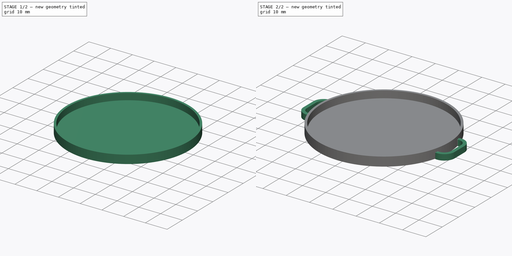
[diagram: build sequence overview — one tinted view per stage of 2, left to right]
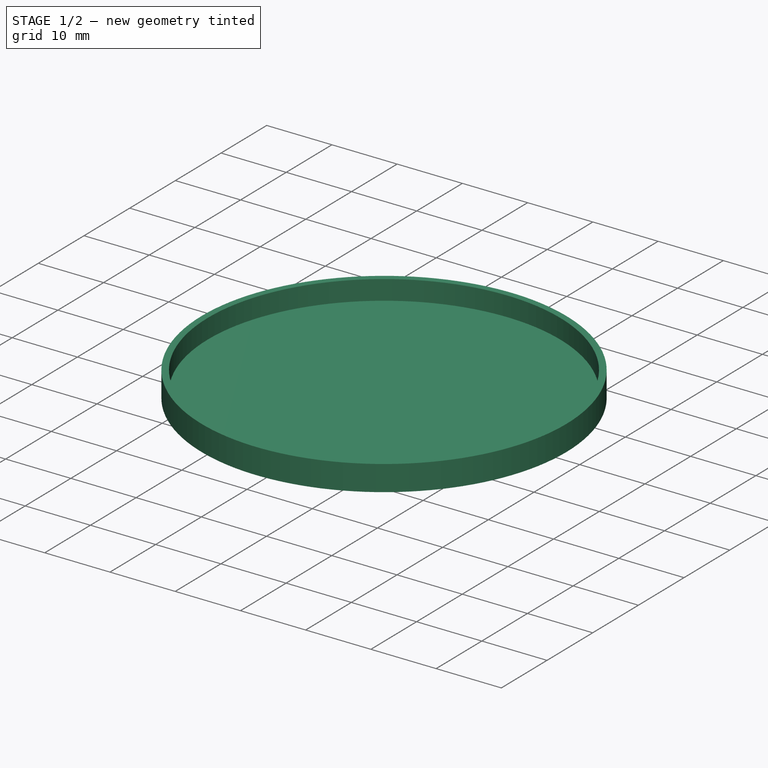
[diagram: stage 1 of 2 — iso view after this stage's code; geometry added in this stage tinted green]
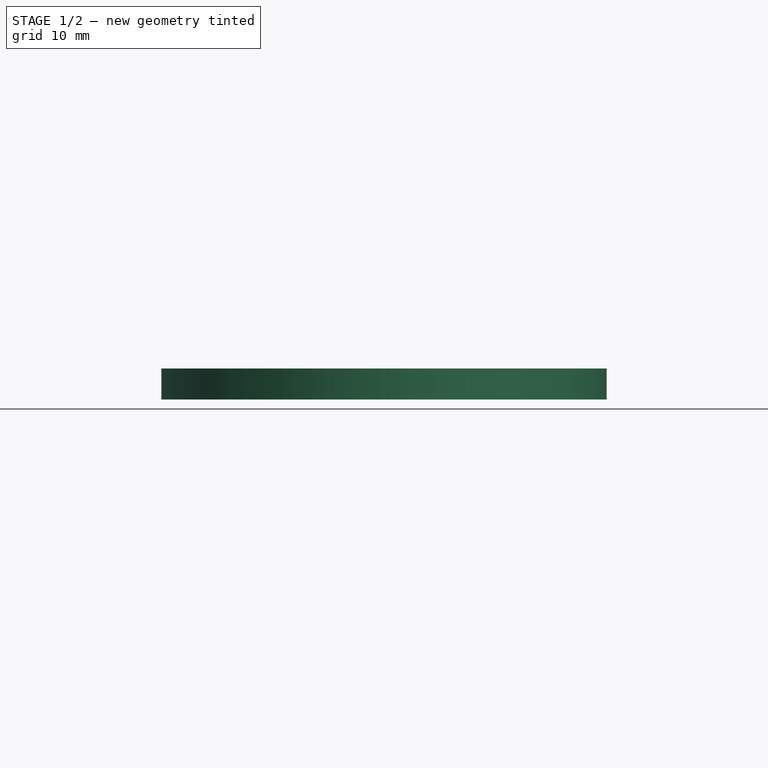
[diagram: stage 1 of 2 — front view after this stage's code; geometry added in this stage tinted green]
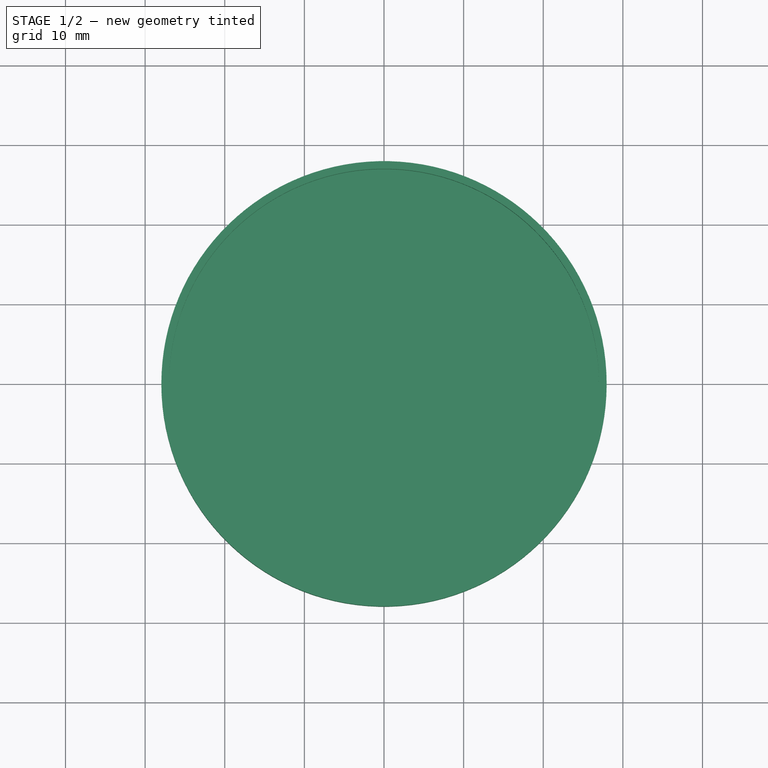
[diagram: stage 1 of 2 — top view after this stage's code; geometry added in this stage tinted green]
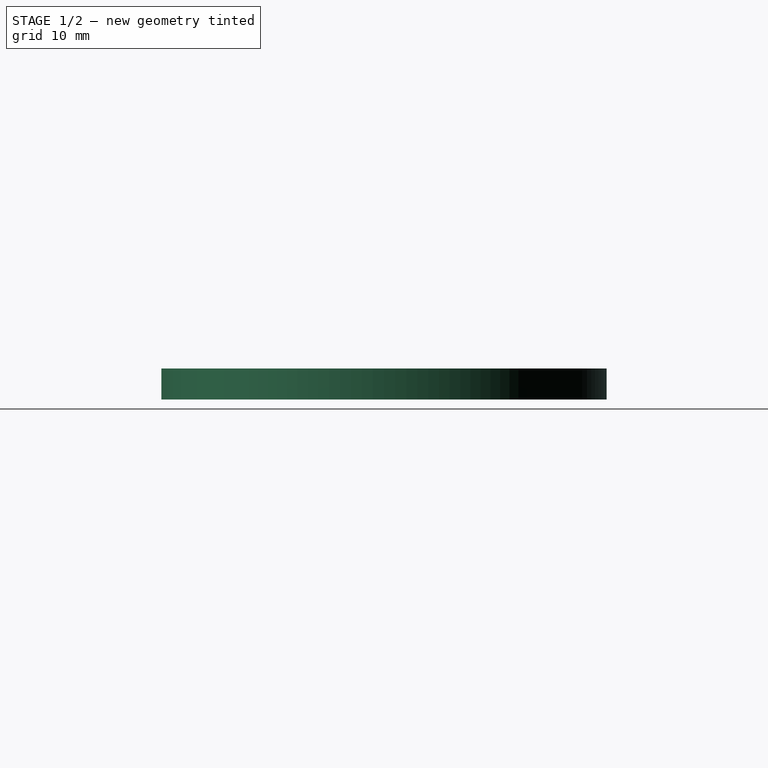
[diagram: stage 1 of 2 — right view after this stage's code; geometry added in this stage tinted green]
FCSTD DOCUMENT  (FreeCAD 0.18.3R)
Label: top_simple
License: All rights reserved
LicenseURL: http://en.wikipedia.org/wiki/All_rights_reserved
objects: Sketcher::SketchObject×2, PartDesign::Revolution×1, PartDesign::Pad×1, PartDesign::Body×1
note: 7 computed .brp shape members not serialized (recipe doc carries the construction recipe); baked Part::Feature solids carry a one-line shape summary decoded from their .brp

FEATURE [Sketcher::SketchObject] Sketch
  MapMode = 5
  Placement = pos=(0,0,0) rot=(1,0,0;1.5708rad)
  Support = -> [XZ_Plane]
  sketch-geometry (6):
    g0: LineSegment StartX=0 StartY=0 StartZ=0 EndX=27.96 EndY=0 EndZ=0
    g1: LineSegment StartX=27.96 StartY=0 StartZ=0 EndX=27.96 EndY=3.9 EndZ=0
    g2: LineSegment StartX=27.96 StartY=3.9 StartZ=0 EndX=27 EndY=3.9 EndZ=0
    g3: LineSegment StartX=27 StartY=3.9 StartZ=0 EndX=27 EndY=0.9 EndZ=0
    g4: LineSegment StartX=27 StartY=0.9 StartZ=0 EndX=0 EndY=0.9 EndZ=0
    g5: LineSegment StartX=0 StartY=0.9 StartZ=0 EndX=0 EndY=0 EndZ=0
  constraints (17):
    c: Coincident(g-1,g0)
    c: PointOnObject(g0,g-1)
    c: Coincident(g0,g1)
    c: Vertical(g1)
    c: Coincident(g1,g2)
    c: Horizontal(g2)
    c: Coincident(g2,g3)
    c: Vertical(g3)
    c: Coincident(g3,g4)
    c: PointOnObject(g4,g-2)
    c: Horizontal(g4)
    c: Coincident(g4,g5)
    c: Coincident(g5,g0)
    c: DistanceX(g4,g4) = 27
    c: DistanceY(g5,g5) = 0.9
    c: DistanceY(g3,g3) = 3
    c: DistanceX(g2,g2) = 0.96
FEATURE [PartDesign::Revolution] Revolution
  Angle = 360
  Axis = (0,2e-16,1)
  Base = (0,0,0)
  Placement = pos=(0,0,0) rot=(1,0,0;1.5708rad)
  Profile = -> Sketch
  ReferenceAxis = -> Sketch [V_Axis]
  Reversed = true
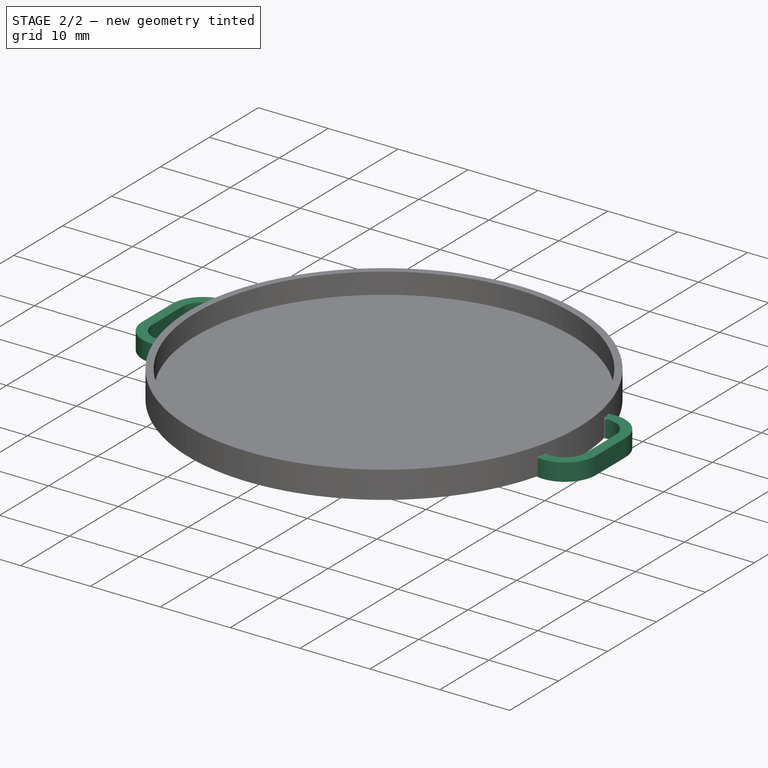
[diagram: stage 2 of 2 — iso view after this stage's code; geometry added in this stage tinted green]
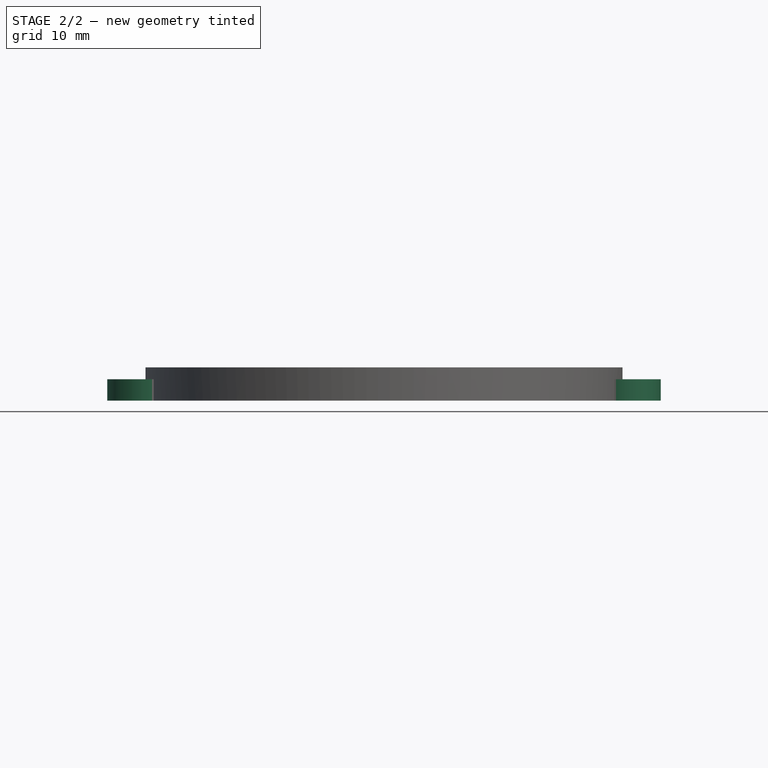
[diagram: stage 2 of 2 — front view after this stage's code; geometry added in this stage tinted green]
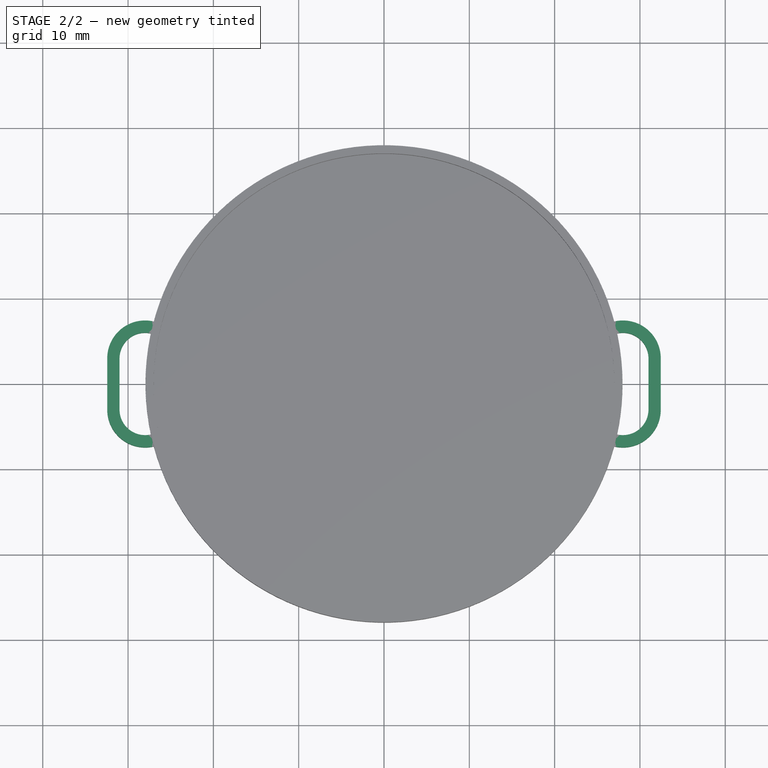
[diagram: stage 2 of 2 — top view after this stage's code; geometry added in this stage tinted green]
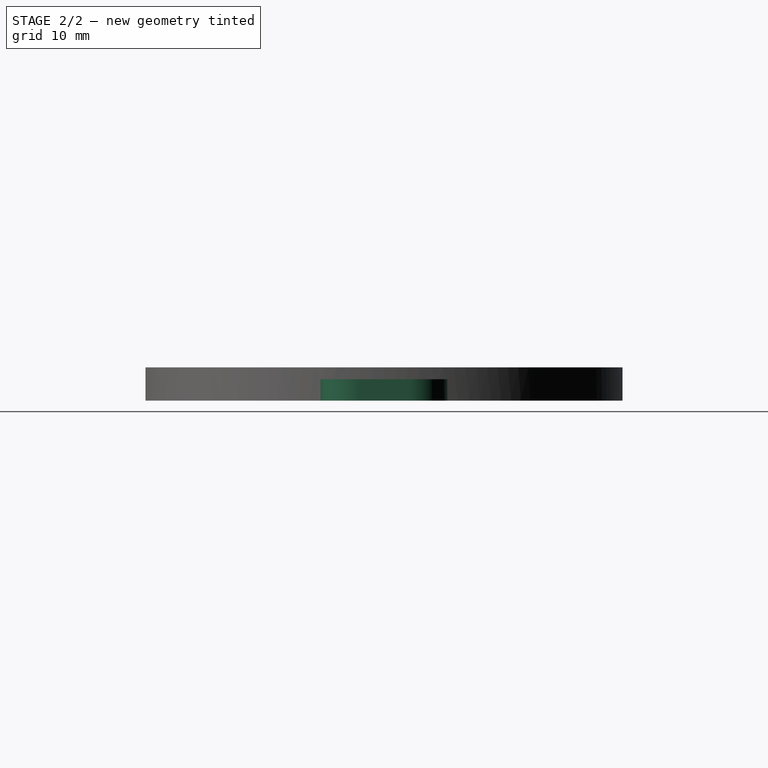
[diagram: stage 2 of 2 — right view after this stage's code; geometry added in this stage tinted green]
FEATURE [Sketcher::SketchObject] Sketch001
  MapMode = 5
  Support = -> [XY_Plane]
  sketch-geometry (16):
    g0: ArcOfCircle CenterX=28 CenterY=3 CenterZ=0 NormalX=0 NormalY=0 NormalZ=1 AngleXU=0 Radius=3 StartAngle=-9e-16 EndAngle=2.1243
    g1: ArcOfCircle CenterX=28 CenterY=-3 CenterZ=0 NormalX=0 NormalY=0 NormalZ=1 AngleXU=0 Radius=3 StartAngle=4.15889 EndAngle=6.28319
    g2: LineSegment StartX=31 StartY=3 StartZ=0 EndX=31 EndY=-3 EndZ=0
    g3: ArcOfCircle CenterX=28 CenterY=3 CenterZ=0 NormalX=0 NormalY=0 NormalZ=1 AngleXU=0 Radius=4.44 StartAngle=0 EndAngle=2.01889
    g4: ArcOfCircle CenterX=28 CenterY=-3 CenterZ=0 NormalX=0 NormalY=0 NormalZ=1 AngleXU=0 Radius=4.44 StartAngle=4.26429 EndAngle=6.28319
    g5: LineSegment StartX=32.44 StartY=3 StartZ=0 EndX=32.44 EndY=-3 EndZ=0
    g6: ArcOfCircle CenterX=0 CenterY=0 CenterZ=0 NormalX=0 NormalY=0 NormalZ=1 AngleXU=0 Radius=27 StartAngle=6.02087 EndAngle=6.07608
    g7: ArcOfCircle CenterX=0 CenterY=0 CenterZ=0 NormalX=0 NormalY=0 NormalZ=1 AngleXU=0 Radius=27 StartAngle=0.20711 EndAngle=0.262319
    g8: ArcOfCircle CenterX=-28 CenterY=3 CenterZ=0 NormalX=0 NormalY=0 NormalZ=1 AngleXU=0 Radius=3 StartAngle=1.01729 EndAngle=3.14159
    g9: ArcOfCircle CenterX=-28 CenterY=-3 CenterZ=0 NormalX=0 NormalY=0 NormalZ=1 AngleXU=0 Radius=3 StartAngle=3.14159 EndAngle=5.26589
    g10: LineSegment StartX=-31 StartY=3 StartZ=0 EndX=-31 EndY=-3 EndZ=0
    g11: ArcOfCircle CenterX=-28 CenterY=3 CenterZ=0 NormalX=0 NormalY=0 NormalZ=1 AngleXU=0 Radius=4.44 StartAngle=1.1227 EndAngle=3.14159
    g12: ArcOfCircle CenterX=-28 CenterY=-3 CenterZ=0 NormalX=0 NormalY=0 NormalZ=1 AngleXU=0 Radius=4.44 StartAngle=3.14159 EndAngle=5.16049
    g13: LineSegment StartX=-32.44 StartY=3 StartZ=0 EndX=-32.44 EndY=-3 EndZ=0
    g14: ArcOfCircle CenterX=0 CenterY=0 CenterZ=0 NormalX=0 NormalY=0 NormalZ=1 AngleXU=0 Radius=27 StartAngle=3.3487 EndAngle=3.40391
    g15: ArcOfCircle CenterX=0 CenterY=0 CenterZ=0 NormalX=0 NormalY=0 NormalZ=1 AngleXU=0 Radius=27 StartAngle=2.87927 EndAngle=2.93448
  constraints (33):
    c: Tangent(g0,g2) = 1.5708
    c: Tangent(g2,g1) = 1.5708
    c: Equal(g0,g1)
    c: DistanceY(g2,g2) = 6
    c: DistanceY(g-1,g0) = 3
    c: DistanceX(g-1,g0) = 28
    c: Tangent(g3,g5) = 1.5708
    c: Tangent(g5,g4) = 1.5708
    c: Equal(g3,g4)
    c: DistanceX(g3) = 28
    c: DistanceY(g5,g5) = 6
    c: DistanceY(g-1,g3) = 3
    c: Coincident(g6,g-1)
    c: Radius(g6) = 27
    c: Coincident(g6,g4)
    c: Coincident(g7,g3)
    c: Equal(g6,g7)
    c: Coincident(g6,g1)
    c: Coincident(g7,g0)
    c: Coincident(g6,g7)
    c: Tangent(g8,g10) = -1.5708
    c: Tangent(g10,g9) = -1.5708
    c: Equal(g8,g9)
    c: Tangent(g11,g13) = -1.5708
    c: Tangent(g13,g12) = -1.5708
    c: Equal(g11,g12)
    c: Radius(g14) = 27
    c: Coincident(g14,g12)
    c: Coincident(g15,g11)
    c: Equal(g14,g15)
    c: Coincident(g14,g9)
    c: Coincident(g15,g8)
    c: Coincident(g14,g15)
FEATURE [PartDesign::Pad] Pad
  BaseFeature = -> Revolution
  Length = 2.5
  Length2 = 100
  Placement = pos=(0,0,0) rot=(1,0,0;1.5708rad)
  Profile = -> Sketch001
  Type = 0
FEATURE [PartDesign::Body] Body
  Group = -> [Sketch,Revolution,Sketch001,Pad]
  Origin = -> Origin
  Tip = -> Pad
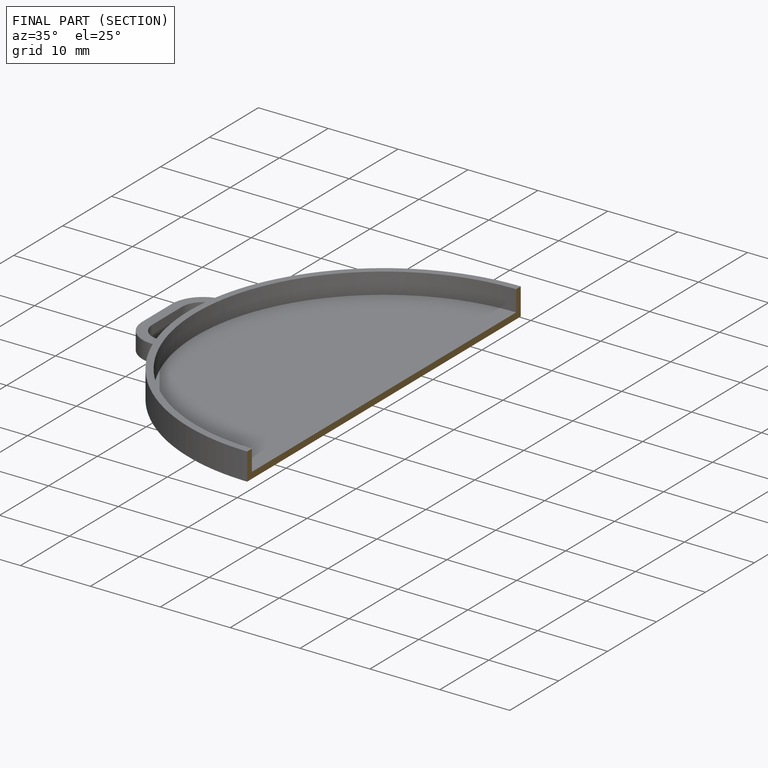
[diagram: finished part — half-section view (interior)]
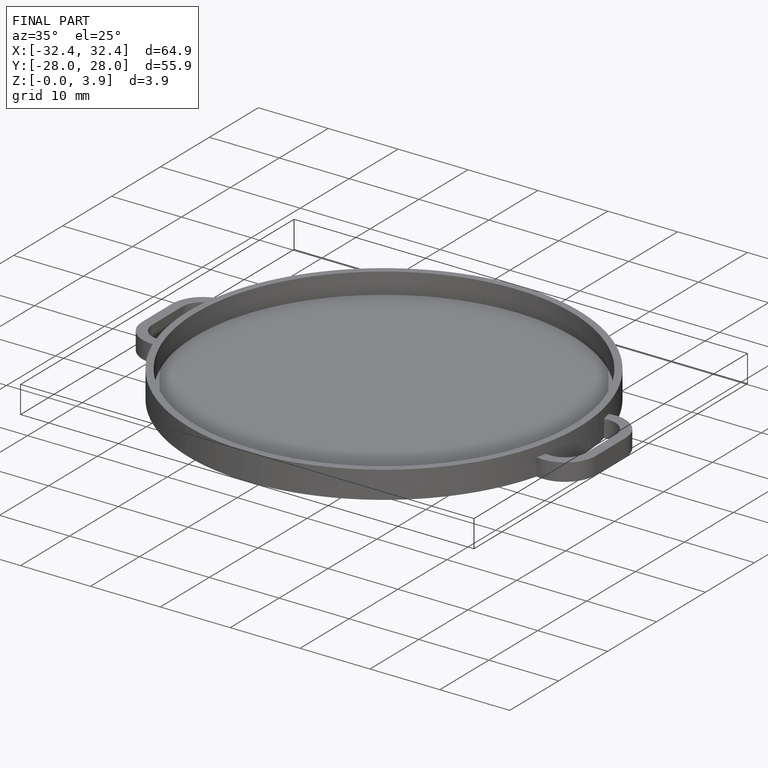
[diagram: finished part — iso view with bounding-box wireframe]
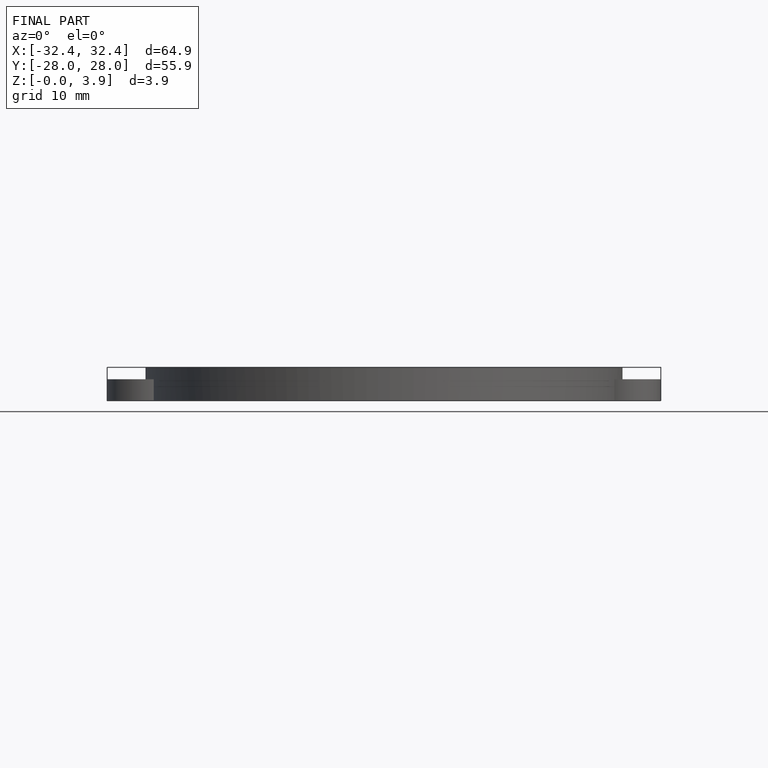
[diagram: finished part — front view with bounding-box wireframe]
